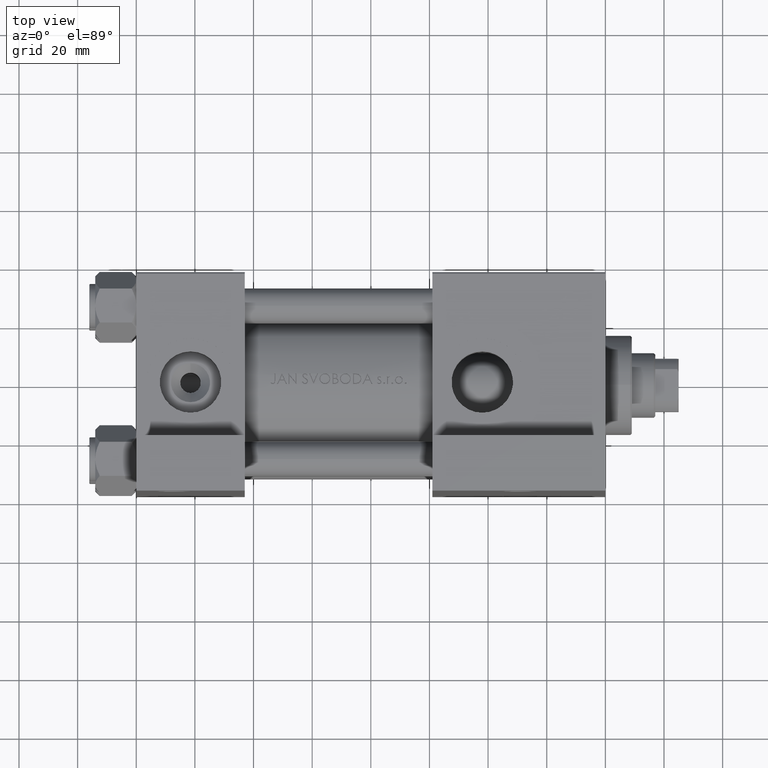
[diagram: clean part render]
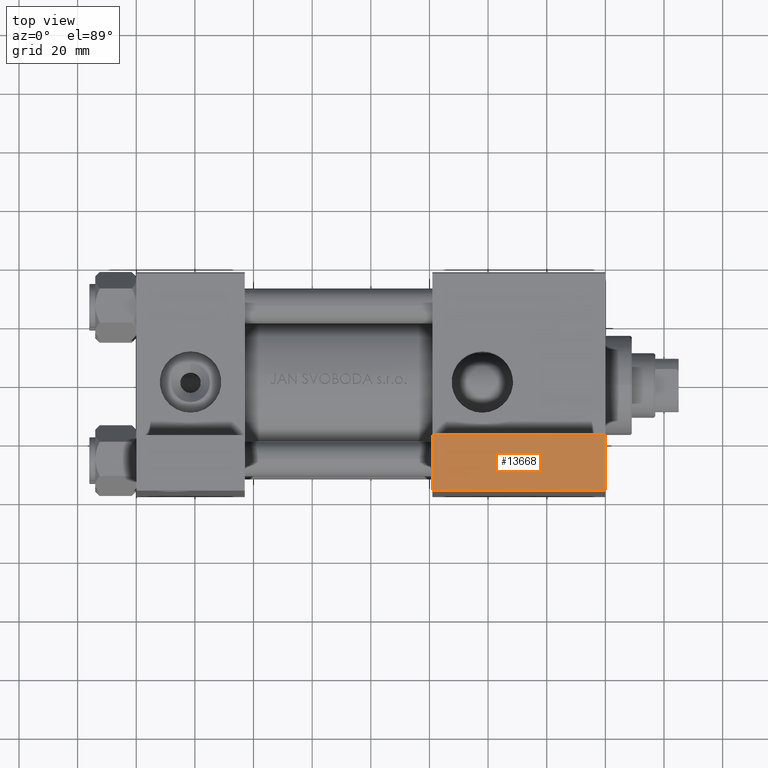
[diagram: same view with one face highlighted and labeled with its STEP entity id]
A machine part, top view. The second image highlights one B-rep face of the part: STEP entity #13668.
In plain terms, the highlighted planar face has unit normal (-0, 0, 1).
Its self-contained STEP definition (entity closure, byte-faithful):
#1497 = ORIENTED_EDGE ( 'NONE', *, *, #6963, .T. ) ;
#2590 = DIRECTION ( 'NONE',  ( -1.000000000000000000, 4.704334850106596780E-16, -0.000000000000000000 ) ) ;
#3075 = VERTEX_POINT ( 'NONE', #36852 ) ;
#5899 = DIRECTION ( 'NONE',  ( -4.704334850106596780E-16, -1.000000000000000000, 0.000000000000000000 ) ) ;
#6112 = EDGE_CURVE ( 'NONE', #21050, #47231, #26792, .T. ) ;
#6309 = ORIENTED_EDGE ( 'NONE', *, *, #13989, .F. ) ;
#6824 = LINE ( 'NONE', #48402, #36254 ) ;
#6963 = EDGE_CURVE ( 'NONE', #3075, #21050, #18027, .T. ) ;
#8590 = VECTOR ( 'NONE', #29877, 1000.000000000000000 ) ;
#13668 = ADVANCED_FACE ( 'NONE', ( #24119 ), #24840, .T. ) ;
#13989 = EDGE_CURVE ( 'NONE', #46263, #47231, #6824, .T. ) ;
#14432 = LINE ( 'NONE', #49037, #8590 ) ;
#15012 = CARTESIAN_POINT ( 'NONE',  ( 159.9999999999999716, -63.50000000000002842, -37.50000000000000000 ) ) ;
#16380 = CARTESIAN_POINT ( 'NONE',  ( 100.9999999999999858, -63.50000000000000000, -18.50000000000000000 ) ) ;
#17788 = CARTESIAN_POINT ( 'NONE',  ( 100.9999999999999858, -63.50000000000000000, -18.50000000000000000 ) ) ;
#18027 = LINE ( 'NONE', #17788, #35813 ) ;
#19099 = VECTOR ( 'NONE', #27285, 1000.000000000000000 ) ;
#19109 = EDGE_CURVE ( 'NONE', #3075, #46263, #14432, .T. ) ;
#19515 = EDGE_LOOP ( 'NONE', ( #6309, #25207, #1497, #38954 ) ) ;
#21050 = VERTEX_POINT ( 'NONE', #25242 ) ;
#24037 = CARTESIAN_POINT ( 'NONE',  ( 100.9999999999999858, -63.50000000000000000, -18.50000000000000000 ) ) ;
#24119 = FACE_OUTER_BOUND ( 'NONE', #19515, .T. ) ;
#24840 = PLANE ( 'NONE',  #41104 ) ;
#25207 = ORIENTED_EDGE ( 'NONE', *, *, #19109, .F. ) ;
#25242 = CARTESIAN_POINT ( 'NONE',  ( 100.9999999999999858, -63.50000000000000000, -18.50000000000000000 ) ) ;
#26175 = CARTESIAN_POINT ( 'NONE',  ( 100.9999999999999858, -63.50000000000000000, -37.50000000000000000 ) ) ;
#26792 = LINE ( 'NONE', #24037, #19099 ) ;
#27285 = DIRECTION ( 'NONE',  ( 0.000000000000000000, 0.000000000000000000, -1.000000000000000000 ) ) ;
#29877 = DIRECTION ( 'NONE',  ( 0.000000000000000000, 0.000000000000000000, -1.000000000000000000 ) ) ;
#35547 = DIRECTION ( 'NONE',  ( 1.000000000000000000, -4.704334850106596780E-16, 0.000000000000000000 ) ) ;
#35813 = VECTOR ( 'NONE', #40941, 1000.000000000000000 ) ;
#36254 = VECTOR ( 'NONE', #2590, 1000.000000000000000 ) ;
#36852 = CARTESIAN_POINT ( 'NONE',  ( 159.9999999999999716, -63.50000000000002842, -18.50000000000000000 ) ) ;
#38954 = ORIENTED_EDGE ( 'NONE', *, *, #6112, .T. ) ;
#40941 = DIRECTION ( 'NONE',  ( -1.000000000000000000, 4.704334850106596780E-16, -0.000000000000000000 ) ) ;
#41104 = AXIS2_PLACEMENT_3D ( 'NONE', #16380, #5899, #35547 ) ;
#46263 = VERTEX_POINT ( 'NONE', #15012 ) ;
#47231 = VERTEX_POINT ( 'NONE', #26175 ) ;
#48402 = CARTESIAN_POINT ( 'NONE',  ( 100.9999999999999858, -63.50000000000000000, -37.50000000000000000 ) ) ;
#49037 = CARTESIAN_POINT ( 'NONE',  ( 159.9999999999999716, -63.50000000000002842, -18.50000000000000000 ) ) ;